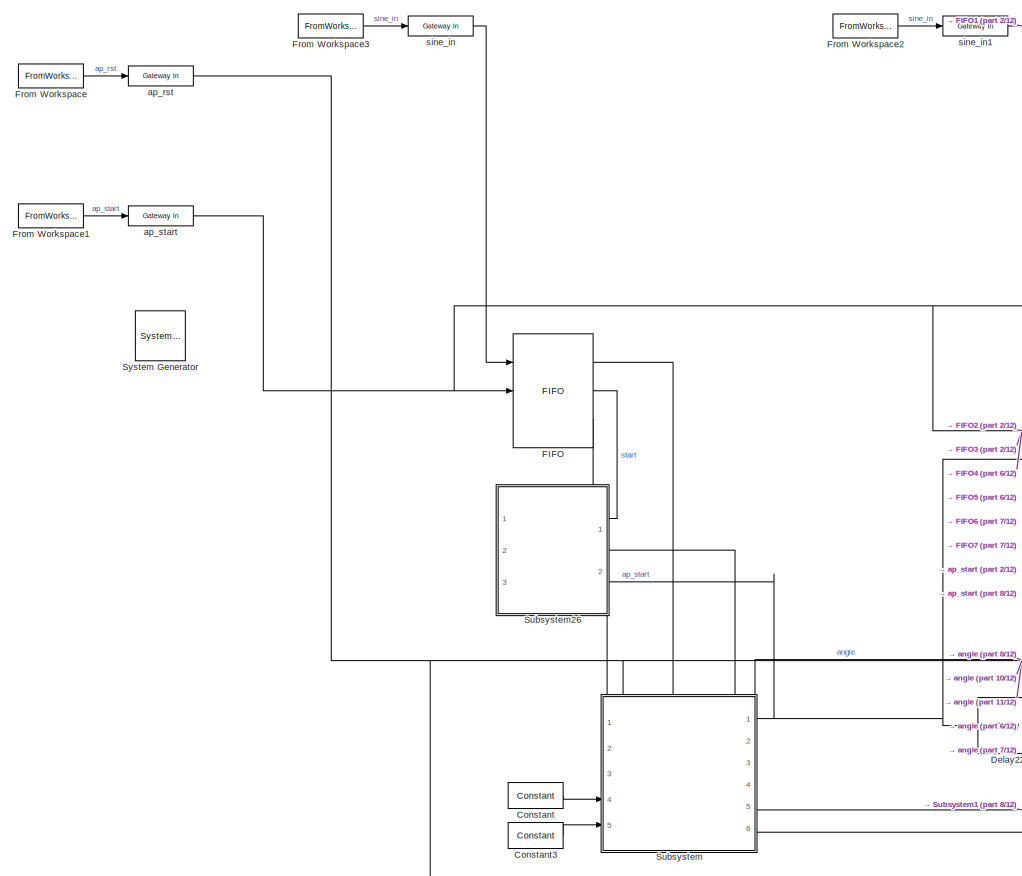
[diagram: root canvas - part 1/12, top left region]
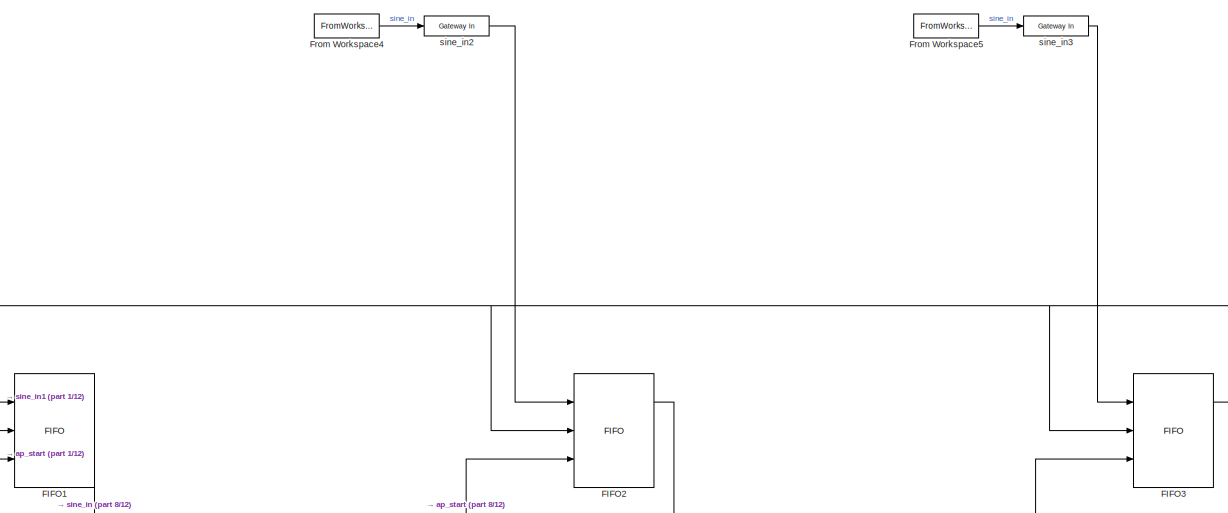
[diagram: root canvas - part 2/12, top left region]
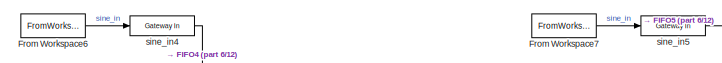
[diagram: root canvas - part 3/12, top center region]
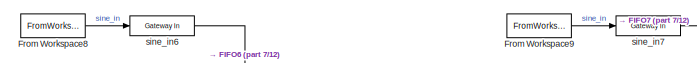
[diagram: root canvas - part 4/12, top center region]
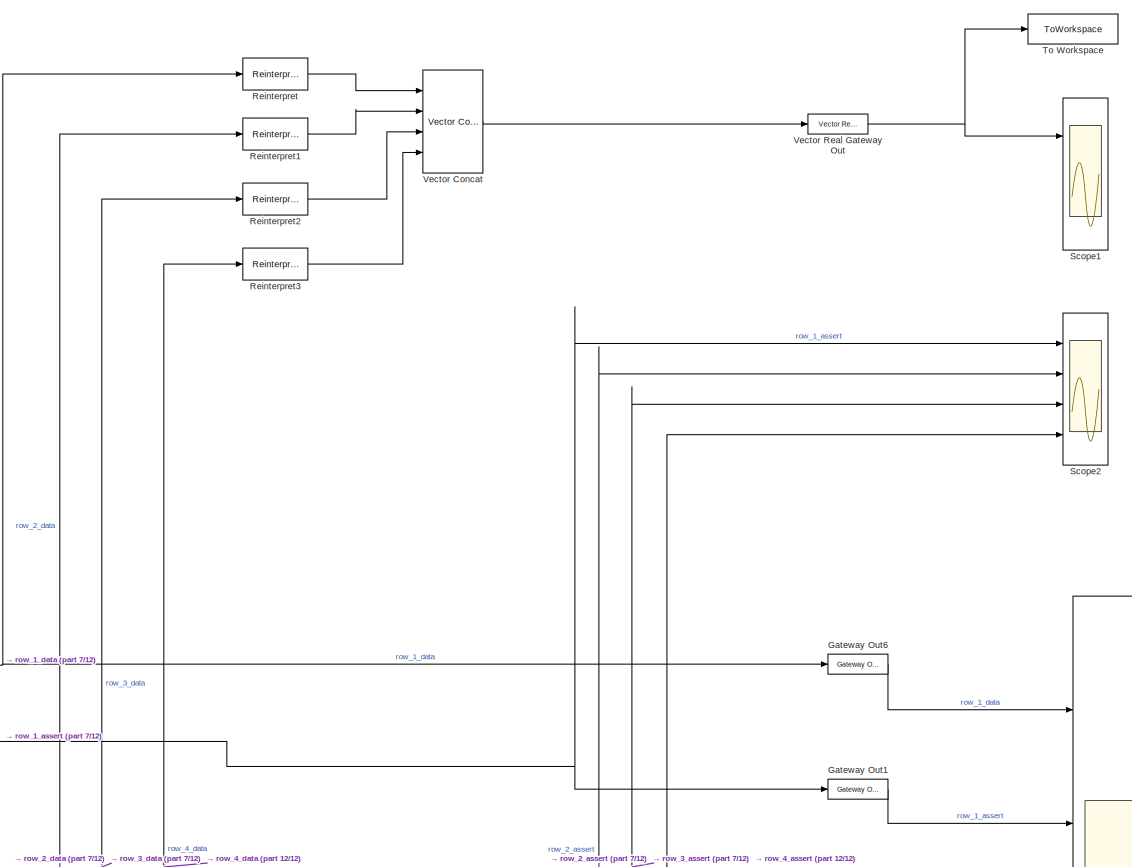
[diagram: root canvas - part 5/12, top right region]
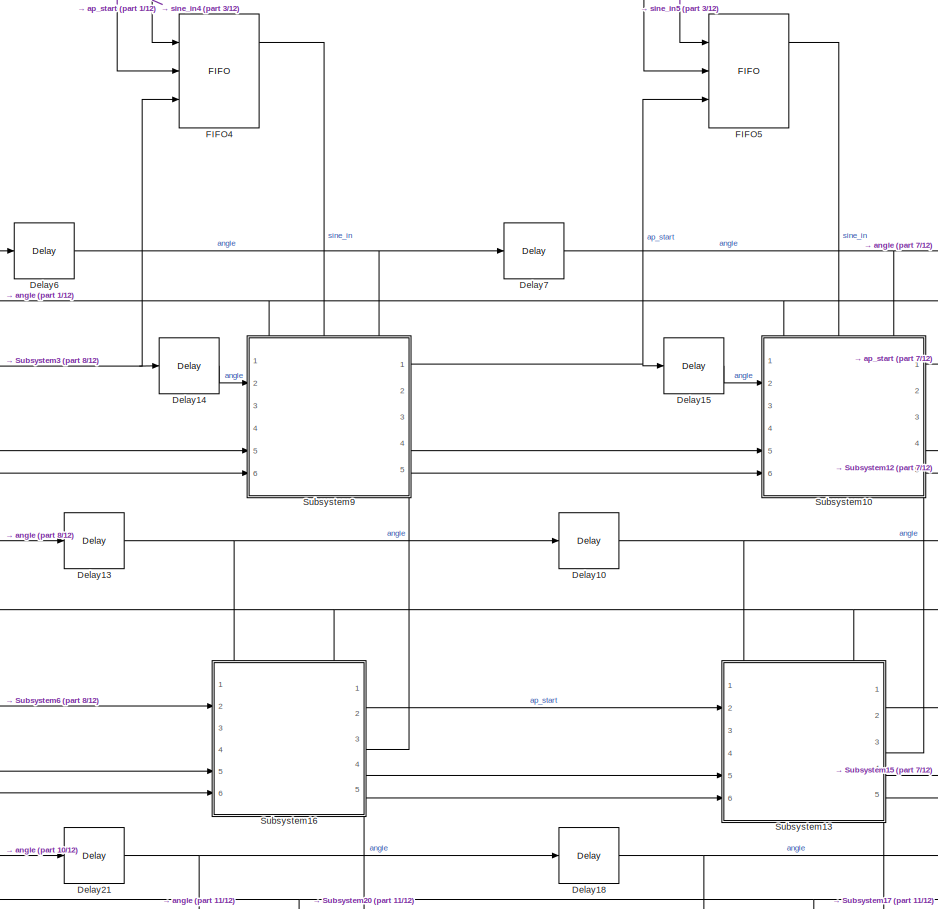
[diagram: root canvas - part 6/12, central region]
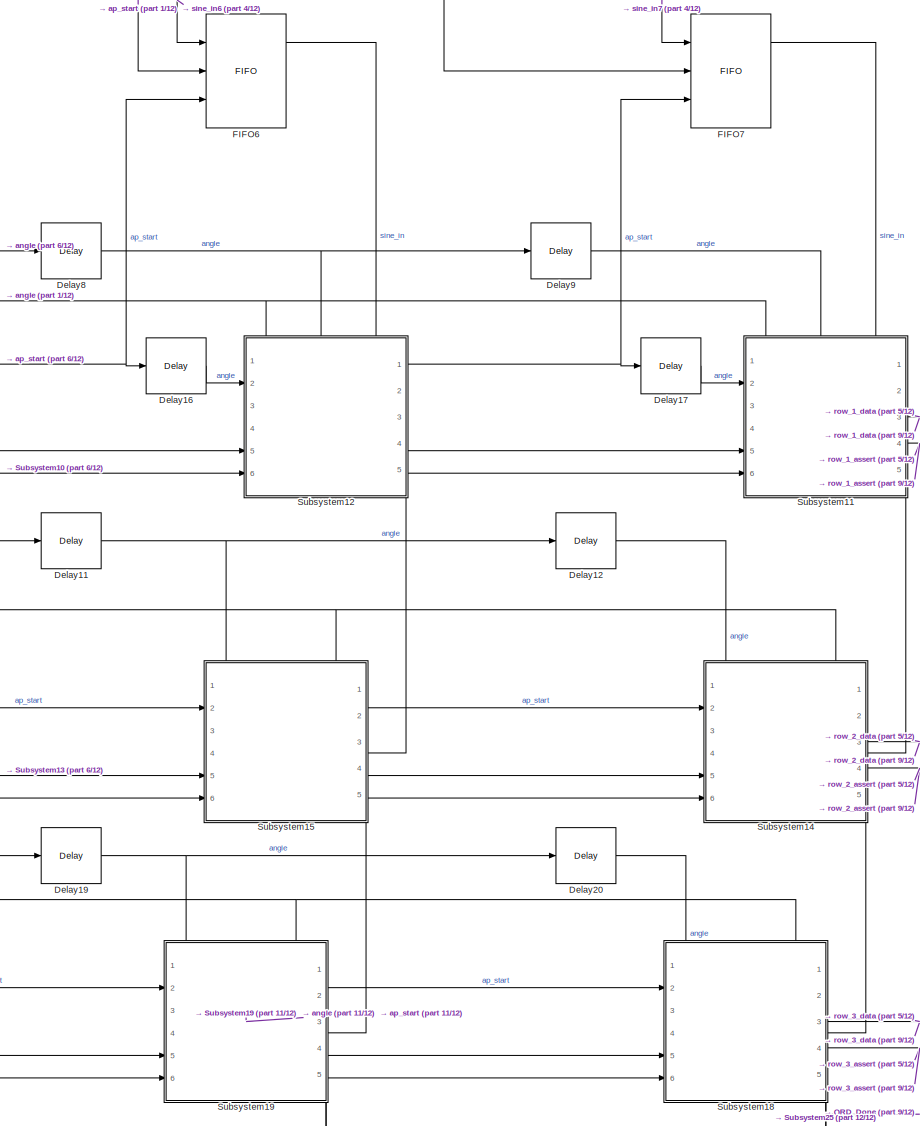
[diagram: root canvas - part 7/12, middle right region]
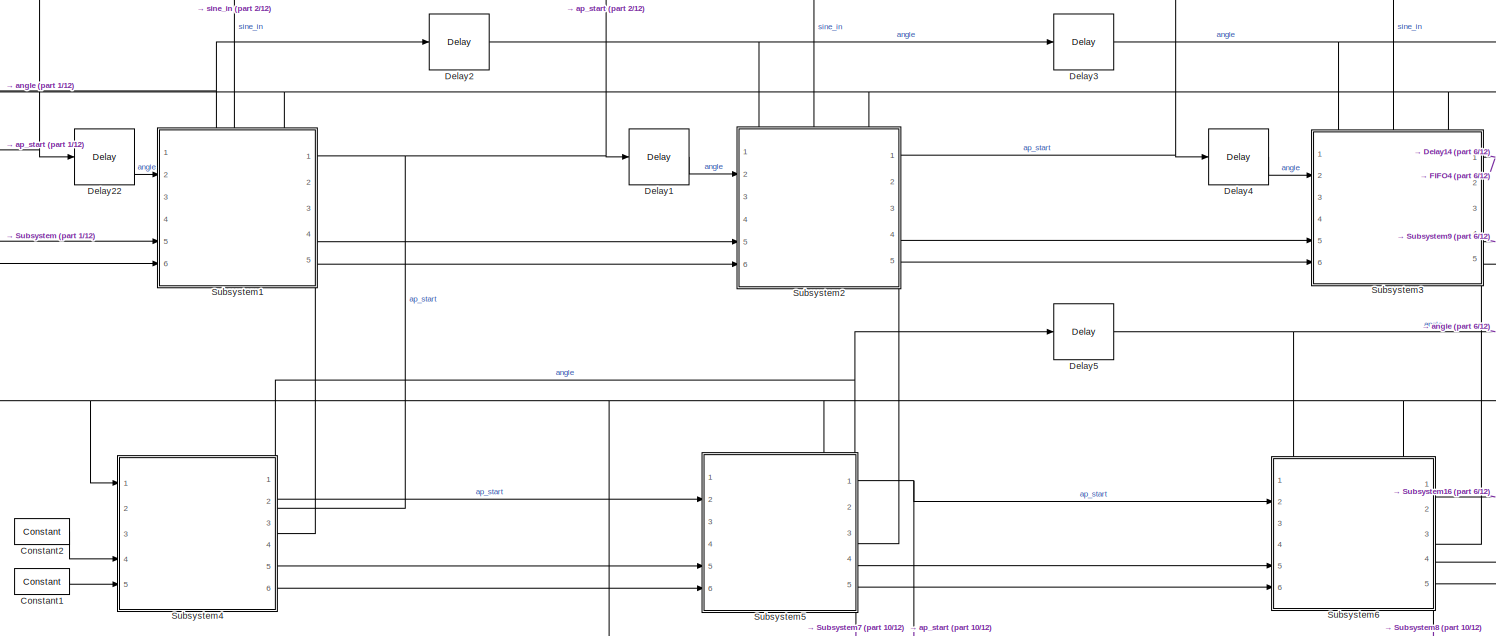
[diagram: root canvas - part 8/12, middle left region]
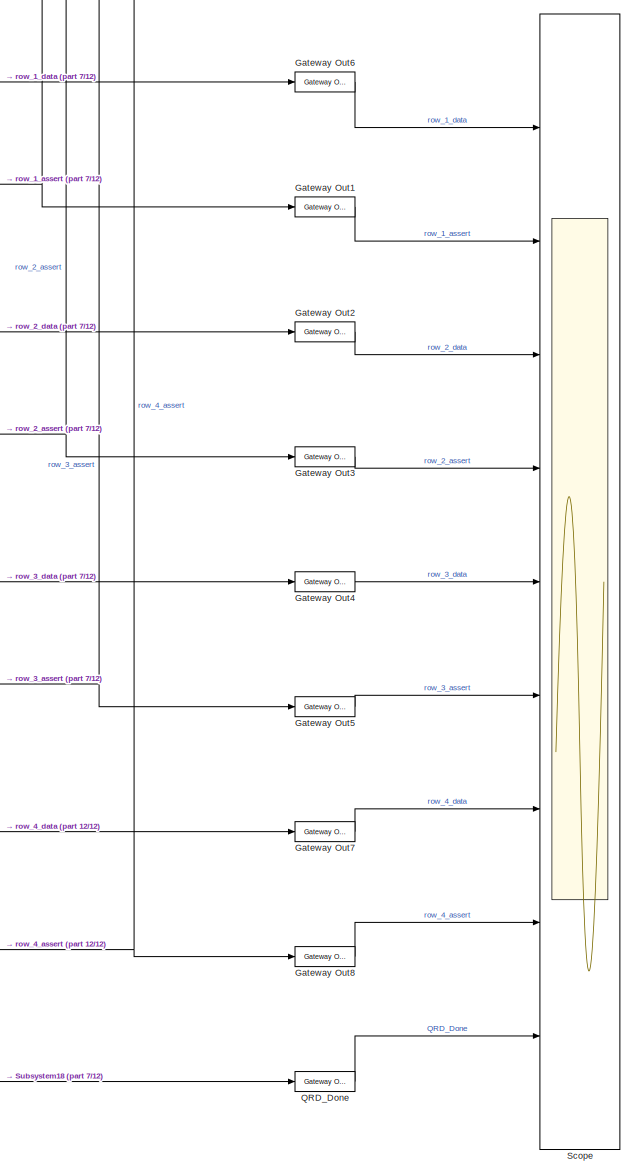
[diagram: root canvas - part 9/12, bottom right region]
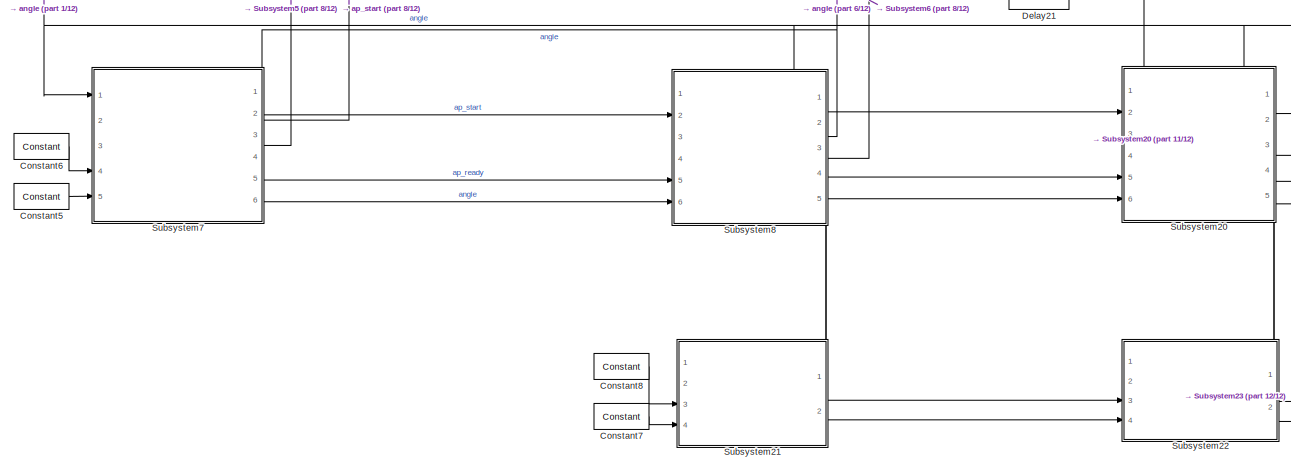
[diagram: root canvas - part 10/12, bottom center region]
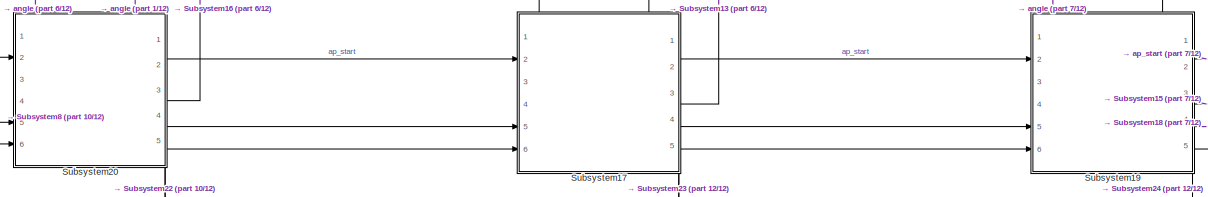
[diagram: root canvas - part 11/12, bottom center region]
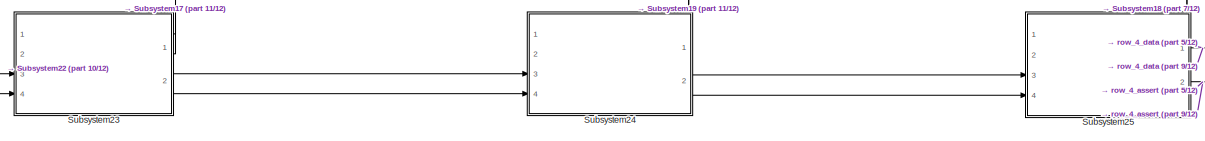
[diagram: root canvas - part 12/12, bottom center region]
MODEL slx_c63558b9d863
KIND model
CONFIG AbsTol = auto
CONFIG EnableMultiTasking = off
CONFIG FixedStep = auto
CONFIG MaxStep = auto
CONFIG MinStep = auto
CONFIG RelTol = 1e-3
CONFIG SampleTimeConstraint = Unconstrained
CONFIG SolverName = VariableStepAuto
CONFIG StartTime = 0.0
CONFIG StopTime = double(sim_length)
BLOCK [Reference]  System Generator  REF=xbsIndex_r4/ System Generator
  AttributesFormatString = System\nGenerator
  Ports = []
  SourceBlock = xbsIndex_r4/ System Generator
  SourceType = Xilinx System Generator Block
  Tag = genX
  UserDataPersistent = on
BLOCK [Reference] Constant  REF=hdlBasic/Constant
  Ports = [0, 1]
  SourceBlock = hdlBasic/Constant
  SourceType = Constant Block Block
BLOCK [Reference] Constant1  REF=hdlBasic/Constant
  Ports = [0, 1]
  SourceBlock = hdlBasic/Constant
  SourceType = Constant Block Block
BLOCK [Reference] Constant2  REF=hdlBasic/Constant
  Ports = [0, 1]
  SourceBlock = hdlBasic/Constant
  SourceType = Constant Block Block
BLOCK [Reference] Constant3  REF=hdlBasic/Constant
  Ports = [0, 1]
  SourceBlock = hdlBasic/Constant
  SourceType = Constant Block Block
BLOCK [Reference] Constant5  REF=hdlBasic/Constant
  Ports = [0, 1]
  SourceBlock = hdlBasic/Constant
  SourceType = Constant Block Block
BLOCK [Reference] Constant6  REF=hdlBasic/Constant
  Ports = [0, 1]
  SourceBlock = hdlBasic/Constant
  SourceType = Constant Block Block
BLOCK [Reference] Constant7  REF=hdlBasic/Constant
  Ports = [0, 1]
  SourceBlock = hdlBasic/Constant
  SourceType = Constant Block Block
BLOCK [Reference] Constant8  REF=hdlBasic/Constant
  Ports = [0, 1]
  SourceBlock = hdlBasic/Constant
  SourceType = Constant Block Block
BLOCK [Reference] Delay1  REF=hdlBasic/Delay
  NameLocation = top
  Ports = [1, 1]
  SourceBlock = hdlBasic/Delay
  SourceType = Delay Block
BLOCK [Reference] Delay10  REF=hdlBasic/Delay
  NameLocation = top
  Ports = [1, 1]
  SourceBlock = hdlBasic/Delay
  SourceType = Delay Block
BLOCK [Reference] Delay11  REF=hdlBasic/Delay
  NameLocation = top
  Ports = [1, 1]
  SourceBlock = hdlBasic/Delay
  SourceType = Delay Block
BLOCK [Reference] Delay12  REF=hdlBasic/Delay
  NameLocation = top
  Ports = [1, 1]
  SourceBlock = hdlBasic/Delay
  SourceType = Delay Block
BLOCK [Reference] Delay13  REF=hdlBasic/Delay
  NameLocation = top
  Ports = [1, 1]
  SourceBlock = hdlBasic/Delay
  SourceType = Delay Block
BLOCK [Reference] Delay14  REF=hdlBasic/Delay
  NameLocation = top
  Ports = [1, 1]
  SourceBlock = hdlBasic/Delay
  SourceType = Delay Block
BLOCK [Reference] Delay15  REF=hdlBasic/Delay
  NameLocation = top
  Ports = [1, 1]
  SourceBlock = hdlBasic/Delay
  SourceType = Delay Block
BLOCK [Reference] Delay16  REF=hdlBasic/Delay
  NameLocation = top
  Ports = [1, 1]
  SourceBlock = hdlBasic/Delay
  SourceType = Delay Block
BLOCK [Reference] Delay17  REF=hdlBasic/Delay
  NameLocation = top
  Ports = [1, 1]
  SourceBlock = hdlBasic/Delay
  SourceType = Delay Block
BLOCK [Reference] Delay18  REF=hdlBasic/Delay
  NameLocation = top
  Ports = [1, 1]
  SourceBlock = hdlBasic/Delay
  SourceType = Delay Block
BLOCK [Reference] Delay19  REF=hdlBasic/Delay
  NameLocation = top
  Ports = [1, 1]
  SourceBlock = hdlBasic/Delay
  SourceType = Delay Block
BLOCK [Reference] Delay2  REF=hdlBasic/Delay
  NameLocation = top
  Ports = [1, 1]
  SourceBlock = hdlBasic/Delay
  SourceType = Delay Block
BLOCK [Reference] Delay20  REF=hdlBasic/Delay
  NameLocation = top
  Ports = [1, 1]
  SourceBlock = hdlBasic/Delay
  SourceType = Delay Block
BLOCK [Reference] Delay21  REF=hdlBasic/Delay
  NameLocation = top
  Ports = [1, 1]
  SourceBlock = hdlBasic/Delay
  SourceType = Delay Block
BLOCK [Reference] Delay22  REF=hdlBasic/Delay
  NameLocation = top
  Ports = [1, 1]
  SourceBlock = hdlBasic/Delay
  SourceType = Delay Block
BLOCK [Reference] Delay3  REF=hdlBasic/Delay
  NameLocation = top
  Ports = [1, 1]
  SourceBlock = hdlBasic/Delay
  SourceType = Delay Block
BLOCK [Reference] Delay4  REF=hdlBasic/Delay
  NameLocation = top
  Ports = [1, 1]
  SourceBlock = hdlBasic/Delay
  SourceType = Delay Block
BLOCK [Reference] Delay5  REF=hdlBasic/Delay
  NameLocation = top
  Ports = [1, 1]
  SourceBlock = hdlBasic/Delay
  SourceType = Delay Block
BLOCK [Reference] Delay6  REF=hdlBasic/Delay
  NameLocation = top
  Ports = [1, 1]
  SourceBlock = hdlBasic/Delay
  SourceType = Delay Block
BLOCK [Reference] Delay7  REF=hdlBasic/Delay
  NameLocation = top
  Ports = [1, 1]
  SourceBlock = hdlBasic/Delay
  SourceType = Delay Block
BLOCK [Reference] Delay8  REF=hdlBasic/Delay
  NameLocation = top
  Ports = [1, 1]
  SourceBlock = hdlBasic/Delay
  SourceType = Delay Block
BLOCK [Reference] Delay9  REF=hdlBasic/Delay
  NameLocation = top
  Ports = [1, 1]
  SourceBlock = hdlBasic/Delay
  SourceType = Delay Block
BLOCK [Reference] FIFO  REF=hdlBasic/FIFO
  Ports = [3, 3]
  SourceBlock = hdlBasic/FIFO
  SourceType = FIFO Block Block
BLOCK [Reference] FIFO1  REF=hdlBasic/FIFO
  Ports = [3, 3]
  SourceBlock = hdlBasic/FIFO
  SourceType = FIFO Block Block
BLOCK [Reference] FIFO2  REF=hdlBasic/FIFO
  Ports = [3, 3]
  SourceBlock = hdlBasic/FIFO
  SourceType = FIFO Block Block
BLOCK [Reference] FIFO3  REF=hdlBasic/FIFO
  Ports = [3, 3]
  SourceBlock = hdlBasic/FIFO
  SourceType = FIFO Block Block
BLOCK [Reference] FIFO4  REF=hdlBasic/FIFO
  Ports = [3, 3]
  SourceBlock = hdlBasic/FIFO
  SourceType = FIFO Block Block
BLOCK [Reference] FIFO5  REF=hdlBasic/FIFO
  Ports = [3, 3]
  SourceBlock = hdlBasic/FIFO
  SourceType = FIFO Block Block
BLOCK [Reference] FIFO6  REF=hdlBasic/FIFO
  Ports = [3, 3]
  SourceBlock = hdlBasic/FIFO
  SourceType = FIFO Block Block
BLOCK [Reference] FIFO7  REF=hdlBasic/FIFO
  Ports = [3, 3]
  SourceBlock = hdlBasic/FIFO
  SourceType = FIFO Block Block
BLOCK [FromWorkspace] From Workspace
  VariableName = ap_rst
BLOCK [FromWorkspace] From Workspace1
  OutputAfterFinalValue = Holding final value
  VariableName = ap_start
BLOCK [FromWorkspace] From Workspace2
  VariableName = col_2
BLOCK [FromWorkspace] From Workspace3
  OutputAfterFinalValue = Holding final value
  VariableName = col_1
BLOCK [FromWorkspace] From Workspace4
  VariableName = col_3
BLOCK [FromWorkspace] From Workspace5
  VariableName = col_4
BLOCK [FromWorkspace] From Workspace6
  VariableName = col_5
BLOCK [FromWorkspace] From Workspace7
  VariableName = col_6
BLOCK [FromWorkspace] From Workspace8
  VariableName = col_7
BLOCK [FromWorkspace] From Workspace9
  VariableName = col_8
BLOCK [Reference] Gateway Out1  REF=hdlBasic/Gateway Out
  Ports = [1, 1]
  SourceBlock = hdlBasic/Gateway Out
  SourceType = Gateway Out Block
BLOCK [Reference] Gateway Out2  REF=hdlBasic/Gateway Out
  Ports = [1, 1]
  SourceBlock = hdlBasic/Gateway Out
  SourceType = Gateway Out Block
BLOCK [Reference] Gateway Out3  REF=hdlBasic/Gateway Out
  Ports = [1, 1]
  SourceBlock = hdlBasic/Gateway Out
  SourceType = Gateway Out Block
BLOCK [Reference] Gateway Out4  REF=hdlBasic/Gateway Out
  Ports = [1, 1]
  SourceBlock = hdlBasic/Gateway Out
  SourceType = Gateway Out Block
BLOCK [Reference] Gateway Out5  REF=hdlBasic/Gateway Out
  Ports = [1, 1]
  SourceBlock = hdlBasic/Gateway Out
  SourceType = Gateway Out Block
BLOCK [Reference] Gateway Out6  REF=hdlBasic/Gateway Out
  Ports = [1, 1]
  SourceBlock = hdlBasic/Gateway Out
  SourceType = Gateway Out Block
BLOCK [Reference] Gateway Out7  REF=hdlBasic/Gateway Out
  Ports = [1, 1]
  SourceBlock = hdlBasic/Gateway Out
  SourceType = Gateway Out Block
BLOCK [Reference] Gateway Out8  REF=hdlBasic/Gateway Out
  Ports = [1, 1]
  SourceBlock = hdlBasic/Gateway Out
  SourceType = Gateway Out Block
BLOCK [Reference] QRD_Done  REF=hdlBasic/Gateway Out
  Ports = [1, 1]
  SourceBlock = hdlBasic/Gateway Out
  SourceType = Gateway Out Block
BLOCK [Reference] Reinterpret  REF=hdlBasic/Reinterpret
  Ports = [1, 1]
  SourceBlock = hdlBasic/Reinterpret
  SourceType = Type Reinterpreter Block
BLOCK [Reference] Reinterpret1  REF=hdlBasic/Reinterpret
  Ports = [1, 1]
  SourceBlock = hdlBasic/Reinterpret
  SourceType = Type Reinterpreter Block
BLOCK [Reference] Reinterpret2  REF=hdlBasic/Reinterpret
  Ports = [1, 1]
  SourceBlock = hdlBasic/Reinterpret
  SourceType = Type Reinterpreter Block
BLOCK [Reference] Reinterpret3  REF=hdlBasic/Reinterpret
  Ports = [1, 1]
  SourceBlock = hdlBasic/Reinterpret
  SourceType = Type Reinterpreter Block
BLOCK [Scope] Scope
  Floating = off
  NumInputPorts = 9
  Ports = [9]
  ScopeSpecificationString = Simulink.scopes.TimeScopeBlockCfg('CurrentConfiguration', extmgr.ConfigurationSet(extmgr.Configuration('Core','General UI',true),extmgr.Configuration('Core','Source UI',true),extmgr.Configuration('Sources','WiredSimulink',true),extmgr.Configuration('Visuals','Time Domain',true,'SerializedDisplays',{struct('MinYLimReal','-0.03433','MaxYLimReal','1.2826','YLabelReal','','MinYLimMag','0.00000','MaxYL...<+9338ch>
BLOCK [Scope] Scope1
  Floating = off
  NumInputPorts = 3
  Ports = [3]
  ScopeSpecificationString = Simulink.scopes.TimeScopeBlockCfg('CurrentConfiguration', extmgr.ConfigurationSet(extmgr.Configuration('Core','General UI',true),extmgr.Configuration('Core','Source UI',true),extmgr.Configuration('Sources','WiredSimulink',true,'DataLoggingVariableName','ScopeData64'),extmgr.Configuration('Visuals','Time Domain',true,'SerializedDisplays',{struct('MinYLimReal','-28246016.00000','MaxYLimReal','254214...<+5301ch>
BLOCK [Scope] Scope2
  Floating = off
  NumInputPorts = 4
  Ports = [4]
  ScopeSpecificationString = Simulink.scopes.TimeScopeBlockCfg('CurrentConfiguration', extmgr.ConfigurationSet(extmgr.Configuration('Core','General UI',true),extmgr.Configuration('Core','Source UI',true),extmgr.Configuration('Sources','WiredSimulink',true,'DataLoggingVariableName','ScopeData65'),extmgr.Configuration('Visuals','Time Domain',true,'PlotType','Stairs','SerializedDisplays',{struct('MinYLimReal','0.95048','MaxYLimR...<+2253ch>
BLOCK [SubSystem] Subsystem
  PortSchema = {"entries":[{"content":{"sides":[{"content":{"connectorIds":["Out6","In2","In4","In5"]},"type":"ConnectorPlacement.EquallySpacedRectSide","uuid":"1346c518-8b2f-4526-a2ea-39cbeadf4b85"},{"content":{"connectorIds":["Out1","Out3","Out4"],"side":"RIGHT"},"type":"ConnectorPlacement.EquallySpacedRectSide","uuid":"7c1b3206-bde6-4225-9c16-bfac1b31b1ce"},{"content":{"connectorIds":["In1","In3","Out2"],"sid...<+441ch>
  Ports = [5, 6]
  ReferencedSubsystem = ATAN
  RequestExecContextInheritance = off
BLOCK [SubSystem] Subsystem1
  PortSchema = {"entries":[{"content":{"sides":[{"content":{"connectorIds":["In2","In5","In6"]},"type":"ConnectorPlacement.EquallySpacedRectSide","uuid":"c545b77a-6185-4f00-b3c2-6f0e95b73481"},{"content":{"connectorIds":["Out1","Out3","Out4"],"side":"RIGHT"},"type":"ConnectorPlacement.EquallySpacedRectSide","uuid":"77b30f40-c5e6-4fc5-a8bf-3f587adee46d"},{"content":{"connectorIds":["In3","In4","In1"],"side":"TOP"...<+440ch>  <repeated x14 — deduplicated; at blocks: Subsystem1, Subsystem13, Subsystem14, Subsystem15, Subsystem16, Subsystem17, Subsystem18, Subsystem19, Subsystem2, Subsystem20, Subsystem3, Subsystem5, Subsystem6, Subsystem8>
  Ports = [6, 5]
  ReferencedSubsystem = ROT
  RequestExecContextInheritance = off
BLOCK [SubSystem] Subsystem10
  PortSchema = {"entries":[{"content":{"sides":[{"content":{"connectorIds":["In2","In5","In6"]},"type":"ConnectorPlacement.EquallySpacedRectSide","uuid":"c545b77a-6185-4f00-b3c2-6f0e95b73481"},{"content":{"connectorIds":["Out1","Out3","Out4"],"side":"RIGHT"},"type":"ConnectorPlacement.EquallySpacedRectSide","uuid":"77b30f40-c5e6-4fc5-a8bf-3f587adee46d"},{"content":{"connectorIds":["In1","In4","In3"],"side":"TOP"...<+440ch>
  Ports = [6, 5]
  ReferencedSubsystem = ROT
  RequestExecContextInheritance = off
BLOCK [SubSystem] Subsystem11
  PortSchema = {"entries":[{"content":{"sides":[{"content":{"connectorIds":["In2","In5","In6"]},"type":"ConnectorPlacement.EquallySpacedRectSide","uuid":"c545b77a-6185-4f00-b3c2-6f0e95b73481"},{"content":{"connectorIds":["Out1","Out3","Out4"],"side":"RIGHT"},"type":"ConnectorPlacement.EquallySpacedRectSide","uuid":"77b30f40-c5e6-4fc5-a8bf-3f587adee46d"},{"content":{"connectorIds":["In1","In3","In4"],"side":"TOP"...<+440ch>
  Ports = [6, 5]
  ReferencedSubsystem = ROT
  RequestExecContextInheritance = off
BLOCK [SubSystem] Subsystem12
  PortSchema = {"entries":[{"content":{"sides":[{"content":{"connectorIds":["In2","In5","In6"]},"type":"ConnectorPlacement.EquallySpacedRectSide","uuid":"c545b77a-6185-4f00-b3c2-6f0e95b73481"},{"content":{"connectorIds":["Out1","Out3","Out4"],"side":"RIGHT"},"type":"ConnectorPlacement.EquallySpacedRectSide","uuid":"77b30f40-c5e6-4fc5-a8bf-3f587adee46d"},{"content":{"connectorIds":["In1","In3","In4"],"side":"TOP"...<+440ch>
  Ports = [6, 5]
  ReferencedSubsystem = ROT
  RequestExecContextInheritance = off
BLOCK [SubSystem] Subsystem13
  Ports = [6, 5]
  ReferencedSubsystem = ROT
  RequestExecContextInheritance = off
BLOCK [SubSystem] Subsystem14
  Ports = [6, 5]
  ReferencedSubsystem = ROT
  RequestExecContextInheritance = off
BLOCK [SubSystem] Subsystem15
  Ports = [6, 5]
  ReferencedSubsystem = ROT
  RequestExecContextInheritance = off
BLOCK [SubSystem] Subsystem16
  Ports = [6, 5]
  ReferencedSubsystem = ROT
  RequestExecContextInheritance = off
BLOCK [SubSystem] Subsystem17
  Ports = [6, 5]
  ReferencedSubsystem = ROT
  RequestExecContextInheritance = off
BLOCK [SubSystem] Subsystem18
  Ports = [6, 5]
  ReferencedSubsystem = ROT
  RequestExecContextInheritance = off
BLOCK [SubSystem] Subsystem19
  Ports = [6, 5]
  ReferencedSubsystem = ROT
  RequestExecContextInheritance = off
BLOCK [SubSystem] Subsystem2
  Ports = [6, 5]
  ReferencedSubsystem = ROT
  RequestExecContextInheritance = off
BLOCK [SubSystem] Subsystem20
  Ports = [6, 5]
  ReferencedSubsystem = ROT
  RequestExecContextInheritance = off
BLOCK [SubSystem] Subsystem21
  PortSchema = {"entries":[{"content":{"sides":[{"content":{"connectorIds":["In3","In4"]},"type":"ConnectorPlacement.EquallySpacedRectSide","uuid":"faf72d46-e9ca-4554-a625-ae2ca42b272c"},{"content":{"connectorIds":["Out1","Out2"],"side":"RIGHT"},"type":"ConnectorPlacement.EquallySpacedRectSide","uuid":"48df0ee7-6269-49be-b825-f5ec50cf44de"},{"content":{"connectorIds":["In1","In2"],"side":"TOP"},"type":"Connector...<+264ch>  <repeated x5 — deduplicated; at blocks: Subsystem21, Subsystem22, Subsystem23, Subsystem24, Subsystem25>
  Ports = [4, 2]
  ReferencedSubsystem = Output_Selector_Simple
  RequestExecContextInheritance = off
BLOCK [SubSystem] Subsystem22
  Ports = [4, 2]
  ReferencedSubsystem = Output_Selector_Simple
  RequestExecContextInheritance = off
BLOCK [SubSystem] Subsystem23
  Ports = [4, 2]
  ReferencedSubsystem = Output_Selector_Simple
  RequestExecContextInheritance = off
BLOCK [SubSystem] Subsystem24
  Ports = [4, 2]
  ReferencedSubsystem = Output_Selector_Simple
  RequestExecContextInheritance = off
BLOCK [SubSystem] Subsystem25
  Ports = [4, 2]
  ReferencedSubsystem = Output_Selector_Simple
  RequestExecContextInheritance = off
BLOCK [SubSystem] Subsystem26
  PortSchema = {"entries":[{"content":{"sides":[{"content":{"connectorIds":["Out2"]},"type":"ConnectorPlacement.EquallySpacedRectSide","uuid":"854bddad-7798-4bde-aef6-f525d1b9c2d2"},{"content":{"connectorIds":["In1","In3"],"side":"RIGHT"},"type":"ConnectorPlacement.EquallySpacedRectSide","uuid":"2663665e-ec1e-43c0-abf8-99d2507509af"},{"content":{"connectorIds":[],"side":"TOP"},"type":"ConnectorPlacement.EquallyS...<+402ch>
  Ports = [3, 2]
  ReferencedSubsystem = Start_Logic_Block
  RequestExecContextInheritance = off
BLOCK [SubSystem] Subsystem3
  Ports = [6, 5]
  ReferencedSubsystem = ROT
  RequestExecContextInheritance = off
BLOCK [SubSystem] Subsystem4
  PortSchema = {"entries":[{"content":{"sides":[{"content":{"connectorIds":["In1","In4","In5"]},"type":"ConnectorPlacement.EquallySpacedRectSide","uuid":"2ab3b1c3-ccaa-47c6-871d-fe42e2674163"},{"content":{"connectorIds":["Out1","Out3","Out4"],"side":"RIGHT"},"type":"ConnectorPlacement.EquallySpacedRectSide","uuid":"31fb9cc9-97aa-4ac6-b8a6-a5ac9c63e2b7"},{"content":{"connectorIds":["Out2","In3","In2"],"side":"TOP...<+441ch>
  Ports = [5, 6]
  ReferencedSubsystem = ATAN
  RequestExecContextInheritance = off
BLOCK [SubSystem] Subsystem5
  Ports = [6, 5]
  ReferencedSubsystem = ROT
  RequestExecContextInheritance = off
BLOCK [SubSystem] Subsystem6
  Ports = [6, 5]
  ReferencedSubsystem = ROT
  RequestExecContextInheritance = off
BLOCK [SubSystem] Subsystem7
  PortSchema = {"entries":[{"content":{"sides":[{"content":{"connectorIds":["In1","In4","In5"]},"type":"ConnectorPlacement.EquallySpacedRectSide","uuid":"2ab3b1c3-ccaa-47c6-871d-fe42e2674163"},{"content":{"connectorIds":["Out1","Out3","Out4"],"side":"RIGHT"},"type":"ConnectorPlacement.EquallySpacedRectSide","uuid":"31fb9cc9-97aa-4ac6-b8a6-a5ac9c63e2b7"},{"content":{"connectorIds":["Out2","In3","In2"],"side":"TOP...<+441ch>
  Ports = [5, 6]
  ReferencedSubsystem = ATAN
  RequestExecContextInheritance = off
BLOCK [SubSystem] Subsystem8
  Ports = [6, 5]
  ReferencedSubsystem = ROT
  RequestExecContextInheritance = off
BLOCK [SubSystem] Subsystem9
  PortSchema = {"entries":[{"content":{"sides":[{"content":{"connectorIds":["In2","In5","In6"]},"type":"ConnectorPlacement.EquallySpacedRectSide","uuid":"c545b77a-6185-4f00-b3c2-6f0e95b73481"},{"content":{"connectorIds":["Out1","Out3","Out4"],"side":"RIGHT"},"type":"ConnectorPlacement.EquallySpacedRectSide","uuid":"77b30f40-c5e6-4fc5-a8bf-3f587adee46d"},{"content":{"connectorIds":["In1","In4","In3"],"side":"TOP"...<+440ch>
  Ports = [6, 5]
  ReferencedSubsystem = ROT
  RequestExecContextInheritance = off
BLOCK [ToWorkspace] To Workspace
  FixptAsFi = on
  MaxDataPoints = inf
  Ports = [1]
  SampleTime = -1
  SaveFormat = Structure With Time
  VariableName = simout
BLOCK [Reference] Vector Concat  REF=hdlSSR/Vector Concat
  Ports = [4, 1]
  SourceBlock = hdlSSR/Vector Concat
  SourceType = Xilinx Vector Concatenator Block
BLOCK [Reference] Vector Real Gateway Out  REF=hdlSSR/Vector Real Gateway Out
  Ports = [1, 1]
  SourceBlock = hdlSSR/Vector Real Gateway Out
  SourceType = Xilinx Vector Gateway Out Block
BLOCK [Reference] ap_rst  REF=hdlBasic/Gateway In
  Ports = [1, 1]
  SourceBlock = hdlBasic/Gateway In
  SourceType = Gateway In Block
BLOCK [Reference] ap_start  REF=hdlBasic/Gateway In
  Ports = [1, 1]
  SourceBlock = hdlBasic/Gateway In
  SourceType = Gateway In Block
BLOCK [Reference] sine_in  REF=hdlBasic/Gateway In
  Ports = [1, 1]
  SourceBlock = hdlBasic/Gateway In
  SourceType = Gateway In Block
BLOCK [Reference] sine_in1  REF=hdlBasic/Gateway In
  Ports = [1, 1]
  SourceBlock = hdlBasic/Gateway In
  SourceType = Gateway In Block
BLOCK [Reference] sine_in2  REF=hdlBasic/Gateway In
  Ports = [1, 1]
  SourceBlock = hdlBasic/Gateway In
  SourceType = Gateway In Block
BLOCK [Reference] sine_in3  REF=hdlBasic/Gateway In
  Ports = [1, 1]
  SourceBlock = hdlBasic/Gateway In
  SourceType = Gateway In Block
BLOCK [Reference] sine_in4  REF=hdlBasic/Gateway In
  Ports = [1, 1]
  SourceBlock = hdlBasic/Gateway In
  SourceType = Gateway In Block
BLOCK [Reference] sine_in5  REF=hdlBasic/Gateway In
  Ports = [1, 1]
  SourceBlock = hdlBasic/Gateway In
  SourceType = Gateway In Block
BLOCK [Reference] sine_in6  REF=hdlBasic/Gateway In
  Ports = [1, 1]
  SourceBlock = hdlBasic/Gateway In
  SourceType = Gateway In Block
BLOCK [Reference] sine_in7  REF=hdlBasic/Gateway In
  Ports = [1, 1]
  SourceBlock = hdlBasic/Gateway In
  SourceType = Gateway In Block
LINE Constant1:1 -> Subsystem4:5
LINE Constant2:1 -> Subsystem4:4
LINE Constant3:1 -> Subsystem:5
LINE Constant5:1 -> Subsystem7:5
LINE Constant6:1 -> Subsystem7:4
LINE Constant7:1 -> Subsystem21:4
LINE Constant8:1 -> Subsystem21:3
LINE Constant:1 -> Subsystem:4
NET Delay10:1 -> Delay11:1, Subsystem13:3
NET Delay11:1 -> Delay12:1, Subsystem15:3
LINE Delay12:1 -> Subsystem14:3
NET Delay13:1 -> Delay10:1, Subsystem16:3
LINE Delay14:1 -> Subsystem9:2
LINE Delay15:1 -> Subsystem10:2
LINE Delay16:1 -> Subsystem12:2
LINE Delay17:1 -> Subsystem11:2
NET Delay18:1 -> Delay19:1, Subsystem17:3
NET Delay19:1 -> Delay20:1, Subsystem19:3
LINE Delay1:1 -> Subsystem2:2
LINE Delay20:1 -> Subsystem18:3
NET Delay21:1 -> Delay18:1, Subsystem20:3
LINE Delay22:1 -> Subsystem1:2
NET Delay2:1 -> Delay3:1, Subsystem2:3
NET Delay3:1 -> Delay6:1, Subsystem3:3
LINE Delay4:1 -> Subsystem3:2
NET Delay5:1 -> Delay13:1, Subsystem6:3
NET Delay6:1 -> Delay7:1, Subsystem9:3
NET Delay7:1 -> Delay8:1, Subsystem10:3
NET Delay8:1 -> Delay9:1, Subsystem12:3
LINE Delay9:1 -> Subsystem11:3
LINE FIFO1:1 -> Subsystem1:4
LINE FIFO2:1 -> Subsystem2:4
LINE FIFO3:1 -> Subsystem3:4
LINE FIFO4:1 -> Subsystem9:4
LINE FIFO5:1 -> Subsystem10:4
LINE FIFO6:1 -> Subsystem12:4
LINE FIFO7:1 -> Subsystem11:4
LINE FIFO:1 -> Subsystem:3
LINE FIFO:2 -> Subsystem26:1
LINE From Workspace1:1 -> ap_start:1
LINE From Workspace2:1 -> sine_in1:1
LINE From Workspace3:1 -> sine_in:1
LINE From Workspace4:1 -> sine_in2:1
LINE From Workspace5:1 -> sine_in3:1
LINE From Workspace6:1 -> sine_in4:1
LINE From Workspace7:1 -> sine_in5:1
LINE From Workspace8:1 -> sine_in6:1
LINE From Workspace9:1 -> sine_in7:1
LINE From Workspace:1 -> ap_rst:1
LINE Gateway Out1:1 -> Scope:2
LINE Gateway Out2:1 -> Scope:3
LINE Gateway Out3:1 -> Scope:4
LINE Gateway Out4:1 -> Scope:5
LINE Gateway Out5:1 -> Scope:6
LINE Gateway Out6:1 -> Scope:1
LINE Gateway Out7:1 -> Scope:7
LINE Gateway Out8:1 -> Scope:8
LINE QRD_Done:1 -> Scope:9
LINE Reinterpret1:1 -> Vector Concat:2
LINE Reinterpret2:1 -> Vector Concat:3
LINE Reinterpret3:1 -> Vector Concat:4
LINE Reinterpret:1 -> Vector Concat:1
NET Subsystem10:1 -> Delay16:1, FIFO6:3
LINE Subsystem10:2 -> Subsystem13:4
LINE Subsystem10:3 -> Subsystem12:5
LINE Subsystem10:4 -> Subsystem12:6
LINE Subsystem11:2 -> Subsystem14:4
NET Subsystem11:3 -> Gateway Out6:1, Reinterpret:1
NET Subsystem11:4 -> Gateway Out1:1, Scope2:1
NET Subsystem12:1 -> Delay17:1, FIFO7:3
LINE Subsystem12:2 -> Subsystem15:4
LINE Subsystem12:3 -> Subsystem11:5
LINE Subsystem12:4 -> Subsystem11:6
LINE Subsystem13:1 -> Subsystem15:2
LINE Subsystem13:2 -> Subsystem17:4
LINE Subsystem13:3 -> Subsystem15:5
LINE Subsystem13:4 -> Subsystem15:6
LINE Subsystem14:2 -> Subsystem18:4
NET Subsystem14:3 -> Gateway Out2:1, Reinterpret1:1
NET Subsystem14:4 -> Gateway Out3:1, Scope2:2
LINE Subsystem15:1 -> Subsystem14:2
LINE Subsystem15:2 -> Subsystem19:4
LINE Subsystem15:3 -> Subsystem14:5
LINE Subsystem15:4 -> Subsystem14:6
LINE Subsystem16:1 -> Subsystem13:2
LINE Subsystem16:2 -> Subsystem20:4
LINE Subsystem16:3 -> Subsystem13:5
LINE Subsystem16:4 -> Subsystem13:6
LINE Subsystem17:1 -> Subsystem19:2
LINE Subsystem17:2 -> Subsystem23:1
LINE Subsystem17:3 -> Subsystem19:5
LINE Subsystem17:4 -> Subsystem19:6
LINE Subsystem17:5 -> Subsystem23:2
LINE Subsystem18:2 -> Subsystem25:1
NET Subsystem18:3 -> Gateway Out4:1, Reinterpret2:1
NET Subsystem18:4 -> Gateway Out5:1, Scope2:3
NET Subsystem18:5 -> QRD_Done:1, Subsystem25:2
LINE Subsystem19:1 -> Subsystem18:2
LINE Subsystem19:2 -> Subsystem24:1
LINE Subsystem19:3 -> Subsystem18:5
LINE Subsystem19:4 -> Subsystem18:6
LINE Subsystem19:5 -> Subsystem24:2
NET Subsystem1:1 -> Delay1:1, FIFO2:3, Subsystem4:2
LINE Subsystem1:2 -> Subsystem4:3
LINE Subsystem1:3 -> Subsystem2:5
LINE Subsystem1:4 -> Subsystem2:6
LINE Subsystem20:1 -> Subsystem17:2
LINE Subsystem20:2 -> Subsystem22:1
LINE Subsystem20:3 -> Subsystem17:5
LINE Subsystem20:4 -> Subsystem17:6
LINE Subsystem20:5 -> Subsystem22:2
LINE Subsystem21:1 -> Subsystem22:3
LINE Subsystem21:2 -> Subsystem22:4
LINE Subsystem22:1 -> Subsystem23:3
LINE Subsystem22:2 -> Subsystem23:4
LINE Subsystem23:1 -> Subsystem24:3
LINE Subsystem23:2 -> Subsystem24:4
LINE Subsystem24:1 -> Subsystem25:3
LINE Subsystem24:2 -> Subsystem25:4
NET Subsystem25:1 -> Gateway Out7:1, Reinterpret3:1
NET Subsystem25:2 -> Gateway Out8:1, Scope2:4
LINE Subsystem26:1 -> Subsystem:2
LINE Subsystem26:2 -> FIFO:3
NET Subsystem2:1 -> Delay4:1, FIFO3:3
LINE Subsystem2:2 -> Subsystem5:4
LINE Subsystem2:3 -> Subsystem3:5
LINE Subsystem2:4 -> Subsystem3:6
NET Subsystem3:1 -> Delay14:1, FIFO4:3
LINE Subsystem3:2 -> Subsystem6:4
LINE Subsystem3:3 -> Subsystem9:5
LINE Subsystem3:4 -> Subsystem9:6
LINE Subsystem4:1 -> Subsystem5:2
NET Subsystem4:2 -> Delay5:1, Subsystem5:3
LINE Subsystem4:3 -> Subsystem5:5
LINE Subsystem4:4 -> Subsystem5:6
NET Subsystem5:1 -> Subsystem6:2, Subsystem7:2
LINE Subsystem5:2 -> Subsystem7:3
LINE Subsystem5:3 -> Subsystem6:5
LINE Subsystem5:4 -> Subsystem6:6
LINE Subsystem6:1 -> Subsystem16:2
LINE Subsystem6:2 -> Subsystem8:4
LINE Subsystem6:3 -> Subsystem16:5
LINE Subsystem6:4 -> Subsystem16:6
LINE Subsystem7:1 -> Subsystem8:2
NET Subsystem7:2 -> Delay21:1, Subsystem8:3
LINE Subsystem7:3 -> Subsystem8:5
LINE Subsystem7:4 -> Subsystem8:6
LINE Subsystem8:1 -> Subsystem20:2
LINE Subsystem8:2 -> Subsystem21:1
LINE Subsystem8:3 -> Subsystem20:5
LINE Subsystem8:4 -> Subsystem20:6
LINE Subsystem8:5 -> Subsystem21:2
NET Subsystem9:1 -> Delay15:1, FIFO5:3
LINE Subsystem9:2 -> Subsystem16:4
LINE Subsystem9:3 -> Subsystem10:5
LINE Subsystem9:4 -> Subsystem10:6
NET Subsystem:1 -> Delay22:1, FIFO1:3, Subsystem26:3
NET Subsystem:2 -> Delay2:1, Subsystem1:3
LINE Subsystem:3 -> Subsystem1:5
LINE Subsystem:4 -> Subsystem1:6
LINE Subsystem:6 -> Subsystem26:2
LINE Vector Concat:1 -> Vector Real Gateway Out:1
NET Vector Real Gateway Out:1 -> Scope1:1, To Workspace:1
NET ap_rst:1 -> Subsystem10:1, Subsystem11:1, Subsystem12:1, Subsystem13:1, Subsystem14:1, Subsystem15:1, Subsystem16:1, Subsystem17:1, Subsystem18:1, Subsystem19:1, Subsystem1:1, Subsystem20:1, Subsystem2:1, Subsystem3:1, Subsystem4:1, Subsystem5:1, Subsystem6:1, Subsystem7:1, Subsystem8:1, Subsystem9:1, Subsystem:1
NET ap_start:1 -> FIFO1:2, FIFO2:2, FIFO3:2, FIFO4:2, FIFO5:2, FIFO6:2, FIFO7:2, FIFO:2
LINE sine_in1:1 -> FIFO1:1
LINE sine_in2:1 -> FIFO2:1
LINE sine_in3:1 -> FIFO3:1
LINE sine_in4:1 -> FIFO4:1
LINE sine_in5:1 -> FIFO5:1
LINE sine_in6:1 -> FIFO6:1
LINE sine_in7:1 -> FIFO7:1
LINE sine_in:1 -> FIFO:1
note: NET lines group one-source signal fan-out (src -> all destinations, sorted); 1:1 wires keep LINE
